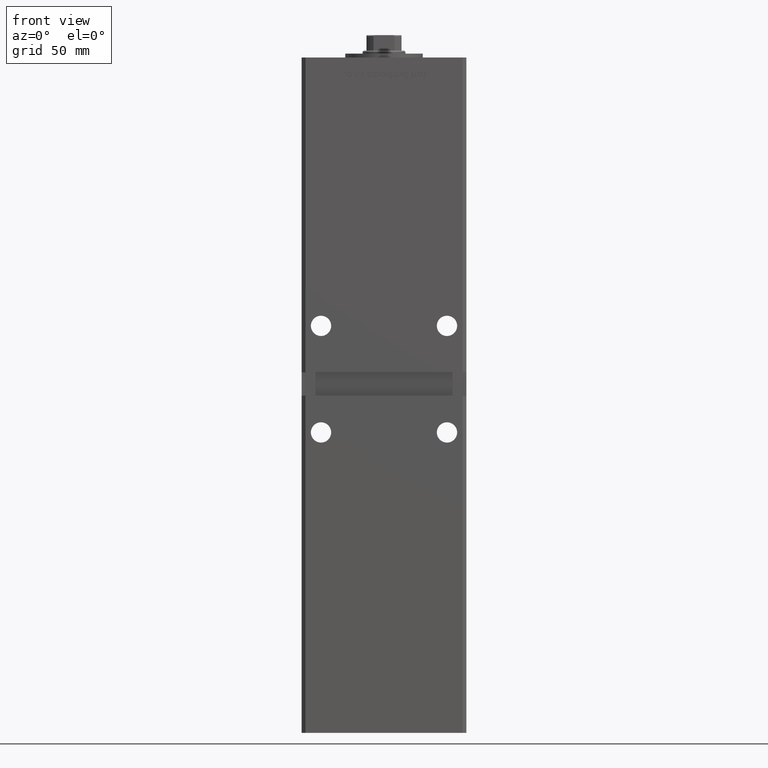
[diagram: clean part render]
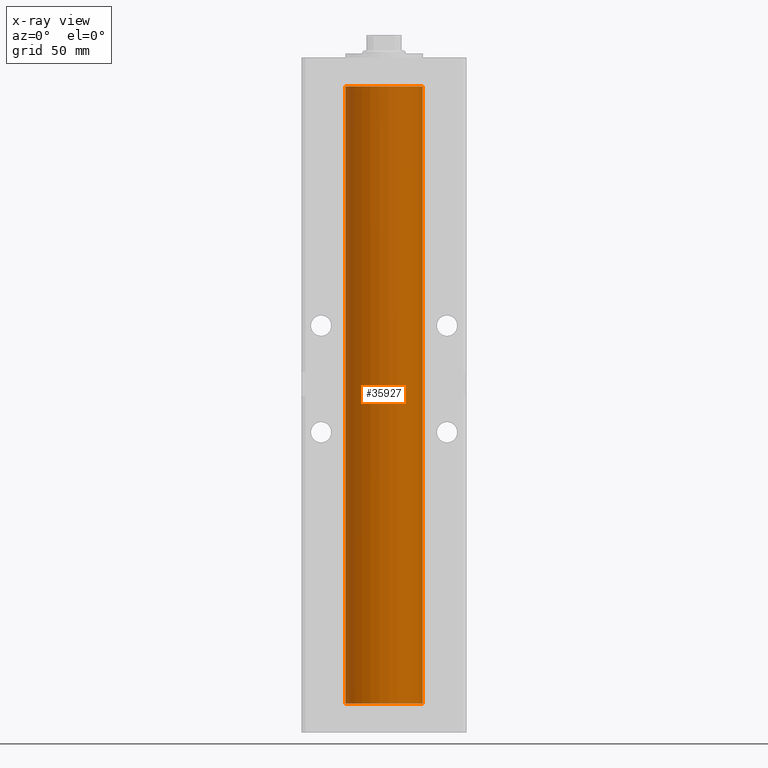
[diagram: x-ray — body ghosted, one internal face saturated and labeled with its STEP entity id]
A machine part, front view, then the same camera in x-ray: the body is ghosted and one INTERNAL B-rep face — a face not visible from any outside direction — is saturated and labeled: STEP entity #35927.
In plain terms, the highlighted cylindrical surface (partial cylindrical patch) has radius 20 mm, axis along (-0, -0, -1).
Its self-contained STEP definition (entity closure, byte-faithful):
#462 = AXIS2_PLACEMENT_3D ( 'NONE', #19295, #47530, #2651 ) ;
#641 = ORIENTED_EDGE ( 'NONE', *, *, #26568, .F. ) ;
#2142 = VECTOR ( 'NONE', #33870, 1000.000000000000000 ) ;
#2651 = DIRECTION ( 'NONE',  ( 1.000000000000000000, 0.000000000000000000, 0.000000000000000000 ) ) ;
#3638 = VERTEX_POINT ( 'NONE', #47512 ) ;
#4211 = CARTESIAN_POINT ( 'NONE',  ( 0.000000000000000000, 0.000000000000000000, 318.5000000000000000 ) ) ;
#4307 = VERTEX_POINT ( 'NONE', #9370 ) ;
#5007 = EDGE_LOOP ( 'NONE', ( #22503, #43802, #641, #52845 ) ) ;
#7069 = VERTEX_POINT ( 'NONE', #36526 ) ;
#7100 = LINE ( 'NONE', #11666, #38107 ) ;
#7970 = DIRECTION ( 'NONE',  ( -0.000000000000000000, -0.000000000000000000, -1.000000000000000000 ) ) ;
#9318 = VERTEX_POINT ( 'NONE', #47861 ) ;
#9370 = CARTESIAN_POINT ( 'NONE',  ( 20.00000000000000000, 2.449293598294706513E-15, 318.5000000000000000 ) ) ;
#11666 = CARTESIAN_POINT ( 'NONE',  ( 20.00000000000000000, 2.449293598294706513E-15, 318.5000000000000000 ) ) ;
#12272 = FACE_OUTER_BOUND ( 'NONE', #5007, .T. ) ;
#12536 = CYLINDRICAL_SURFACE ( 'NONE', #25050, 20.00000000000000000 ) ;
#19192 = DIRECTION ( 'NONE',  ( -0.000000000000000000, -0.000000000000000000, -1.000000000000000000 ) ) ;
#19295 = CARTESIAN_POINT ( 'NONE',  ( 0.000000000000000000, 0.000000000000000000, 318.5000000000000000 ) ) ;
#22503 = ORIENTED_EDGE ( 'NONE', *, *, #43625, .T. ) ;
#23798 = DIRECTION ( 'NONE',  ( -1.000000000000000000, 0.000000000000000000, 0.000000000000000000 ) ) ;
#25050 = AXIS2_PLACEMENT_3D ( 'NONE', #4211, #7970, #23798 ) ;
#26568 = EDGE_CURVE ( 'NONE', #9318, #3638, #30888, .T. ) ;
#30462 = CIRCLE ( 'NONE', #462, 20.00000000000000000 ) ;
#30888 = CIRCLE ( 'NONE', #39482, 20.00000000000000000 ) ;
#31640 = DIRECTION ( 'NONE',  ( 1.000000000000000000, 0.000000000000000000, 0.000000000000000000 ) ) ;
#33870 = DIRECTION ( 'NONE',  ( -0.000000000000000000, -0.000000000000000000, -1.000000000000000000 ) ) ;
#35927 = ADVANCED_FACE ( 'NONE', ( #12272 ), #12536, .F. ) ;
#36526 = CARTESIAN_POINT ( 'NONE',  ( -20.00000000000000000, 0.000000000000000000, 318.5000000000000000 ) ) ;
#37633 = LINE ( 'NONE', #37897, #2142 ) ;
#37897 = CARTESIAN_POINT ( 'NONE',  ( -20.00000000000000000, 0.000000000000000000, 318.5000000000000000 ) ) ;
#38107 = VECTOR ( 'NONE', #19192, 1000.000000000000000 ) ;
#39482 = AXIS2_PLACEMENT_3D ( 'NONE', #43748, #52095, #31640 ) ;
#42055 = EDGE_CURVE ( 'NONE', #4307, #3638, #7100, .T. ) ;
#42737 = EDGE_CURVE ( 'NONE', #7069, #9318, #37633, .T. ) ;
#43625 = EDGE_CURVE ( 'NONE', #7069, #4307, #30462, .T. ) ;
#43748 = CARTESIAN_POINT ( 'NONE',  ( 0.000000000000000000, 0.000000000000000000, 0.000000000000000000 ) ) ;
#43802 = ORIENTED_EDGE ( 'NONE', *, *, #42055, .T. ) ;
#47512 = CARTESIAN_POINT ( 'NONE',  ( 20.00000000000000000, 2.449293598294706513E-15, 0.000000000000000000 ) ) ;
#47530 = DIRECTION ( 'NONE',  ( -0.000000000000000000, 0.000000000000000000, 1.000000000000000000 ) ) ;
#47861 = CARTESIAN_POINT ( 'NONE',  ( -20.00000000000000000, 0.000000000000000000, 0.000000000000000000 ) ) ;
#52095 = DIRECTION ( 'NONE',  ( -0.000000000000000000, 0.000000000000000000, 1.000000000000000000 ) ) ;
#52845 = ORIENTED_EDGE ( 'NONE', *, *, #42737, .F. ) ;